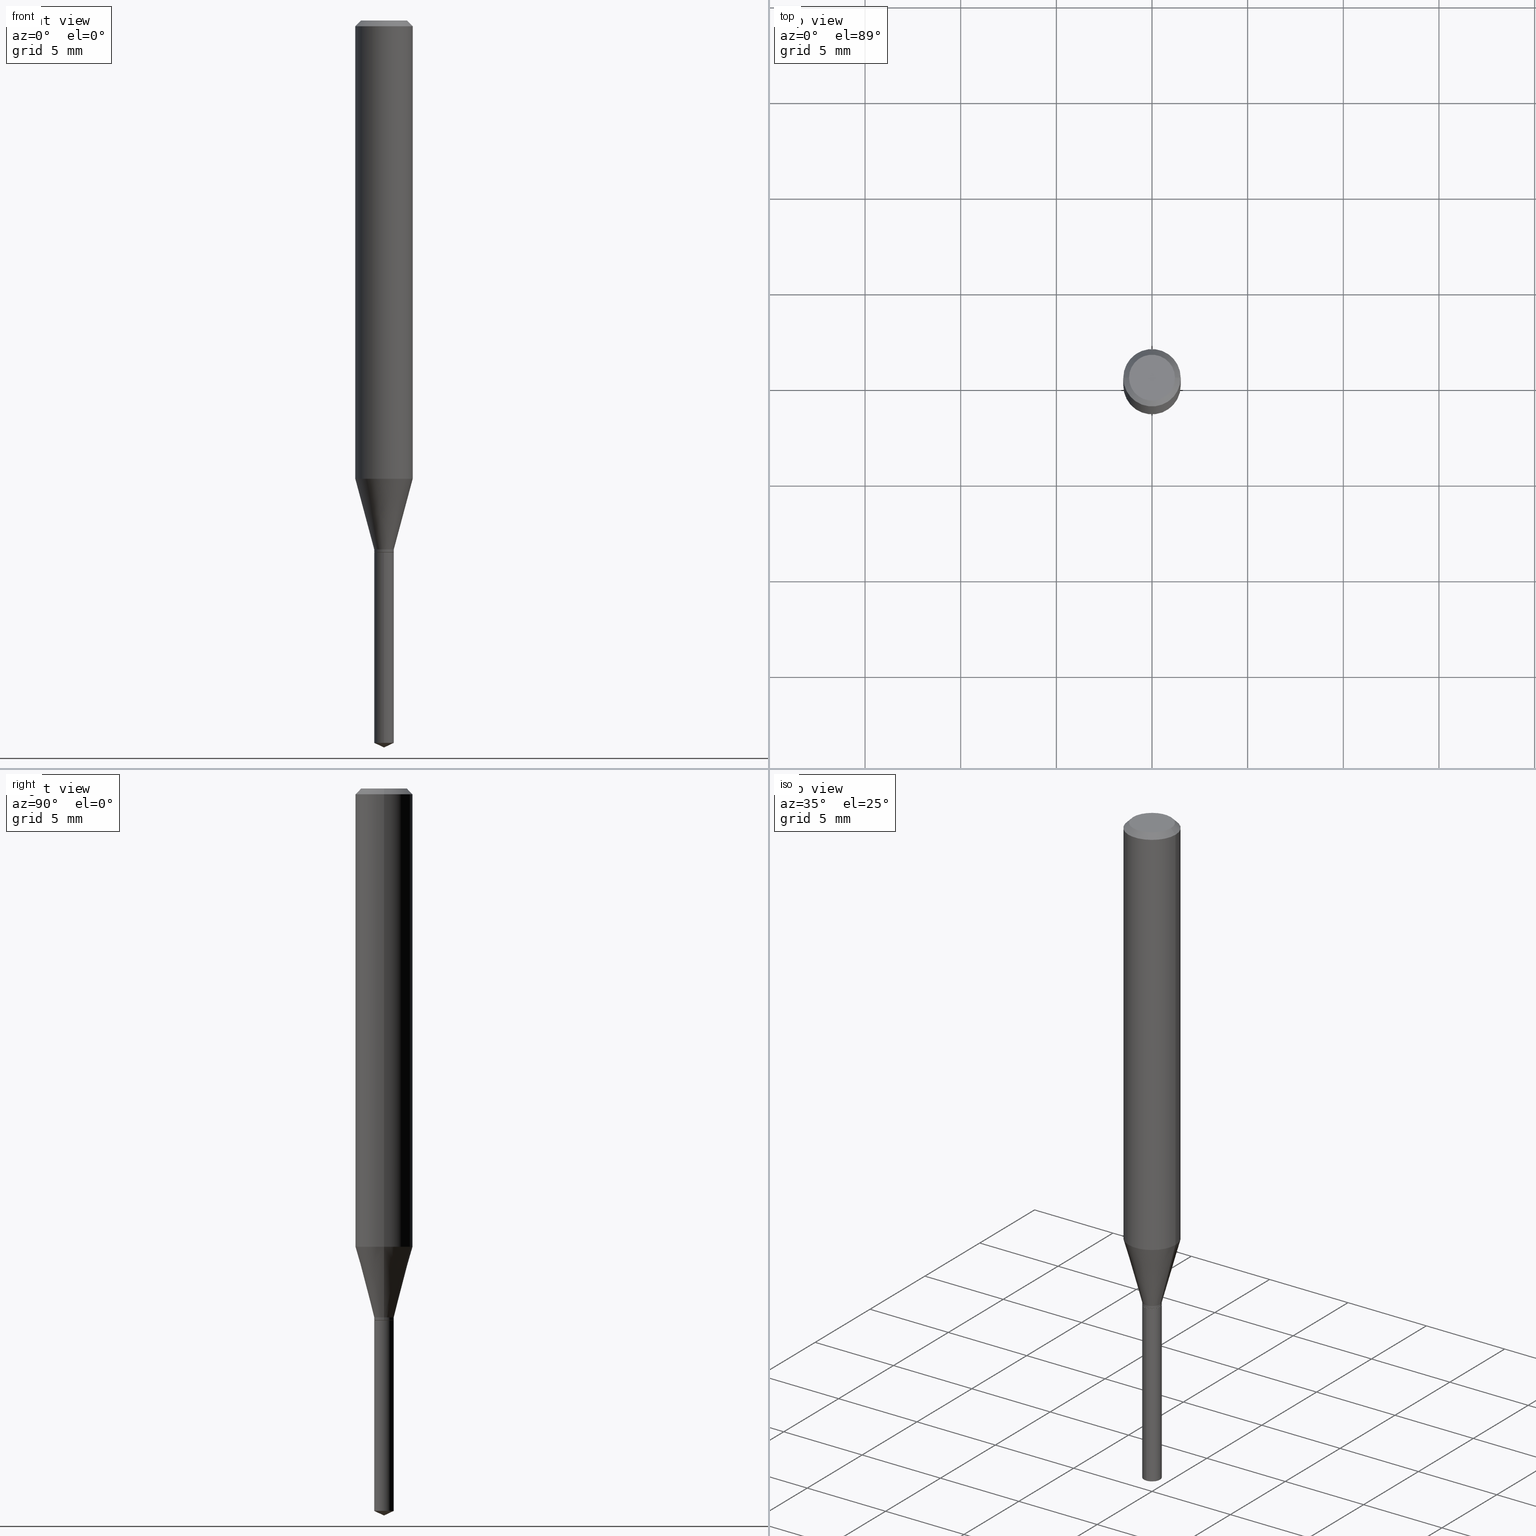
[diagram: canonical four-view strip — front | top / right | iso, engineering-drawing reading convention]
A machine part, canonical four-view strip (front | top / right | iso — engineering-drawing reading convention). The complete STEP part file that produces these views, byte-faithful:
ISO-10303-21;
HEADER;
FILE_DESCRIPTION (( 'STEP AP203' ),
    '1' );
FILE_NAME ('07483.STEP',
    '2024-04-23T21:57:15',
    ( '' ),
    ( '' ),
    'SwSTEP 2.0',
    'SolidWorks 2023',
    '' );
FILE_SCHEMA (( 'CONFIG_CONTROL_DESIGN' ));
ENDSEC;

DATA;
#1 = EDGE_LOOP ( 'NONE', ( #255, #157, #103, #98 ) ) ;
#2 = DIRECTION ( 'NONE',  ( 1.000000000000000000, -6.982962677686266711E-15, 4.876176775795935793E-29 ) ) ;
#3 = VERTEX_POINT ( 'NONE', #141 ) ;
#4 = CARTESIAN_POINT ( 'NONE',  ( 1.428190898878068587E-16, 0.02009999999999617995, -1.094500000000000028 ) ) ;
#5 = ORIENTED_EDGE ( 'NONE', *, *, #455, .F. ) ;
#6 = AXIS2_PLACEMENT_3D ( 'NONE', #294, #257, #347 ) ;
#7 = CARTESIAN_POINT ( 'NONE',  ( 2.661892795532520979E-29, -3.800477437330763942E-15, -1.088499999999999801 ) ) ;
#8 = CARTESIAN_POINT ( 'NONE',  ( 0.000000000000000000, 0.000000000000000000, 0.000000000000000000 ) ) ;
#9 = CARTESIAN_POINT ( 'NONE',  ( -0.01960000000000000284, -3.679510721980732285E-15, -1.094500000000000028 ) ) ;
#10 = VERTEX_POINT ( 'NONE', #59 ) ;
#11 = CIRCLE ( 'NONE', #280, 0.04724000000000000421 ) ;
#12 = CARTESIAN_POINT ( 'NONE',  ( 0.02009999999999999981, -1.403575498214939652E-16, 9.801115319349830341E-31 ) ) ;
#13 = ORIENTED_EDGE ( 'NONE', *, *, #139, .T. ) ;
#14 = CC_DESIGN_PERSON_AND_ORGANIZATION_ASSIGNMENT ( #25, #298, ( #202 ) ) ;
#15 = ORIENTED_EDGE ( 'NONE', *, *, #381, .F. ) ;
#16 = DIRECTION ( 'NONE',  ( -0.2588190451025212391, 5.211531920934549464E-15, 0.9659258262890679791 ) ) ;
#17 = LINE ( 'NONE', #398, #170 ) ;
#18 = CALENDAR_DATE ( 2024, 23, 4 ) ;
#19 = ORIENTED_EDGE ( 'NONE', *, *, #52, .T. ) ;
#20 = ADVANCED_FACE ( 'NONE', ( #36 ), #161, .T. ) ;
#21 = FACE_OUTER_BOUND ( 'NONE', #483, .T. ) ;
#22 = PERSON_AND_ORGANIZATION ( #303, #177 ) ;
#23 = EDGE_LOOP ( 'NONE', ( #313, #353 ) ) ;
#24 = PERSON_AND_ORGANIZATION ( #303, #177 ) ;
#25 = PERSON_AND_ORGANIZATION ( #303, #177 ) ;
#26 = ORIENTED_EDGE ( 'NONE', *, *, #37, .F. ) ;
#27 = CARTESIAN_POINT ( 'NONE',  ( 2.306411186736869099E-29, -3.292943912358867169E-15, -0.9431366210451919141 ) ) ;
#28 = CIRCLE ( 'NONE', #256, 0.05905000000000011628 ) ;
#29 = DATE_AND_TIME ( #18, #184 ) ;
#30 = EDGE_CURVE ( 'NONE', #85, #396, #361, .T. ) ;
#31 = CARTESIAN_POINT ( 'NONE',  ( 2.661892795532520979E-29, -3.800477437330763942E-15, -1.088499999999999801 ) ) ;
#32 = FACE_OUTER_BOUND ( 'NONE', #422, .T. ) ;
#33 = DATE_AND_TIME ( #363, #64 ) ;
#34 = ADVANCED_FACE ( 'NONE', ( #267 ), #467, .T. ) ;
#35 = CARTESIAN_POINT ( 'NONE',  ( 2.676565608369631794E-29, -3.821426325363822773E-15, -1.094499999999999806 ) ) ;
#36 = FACE_OUTER_BOUND ( 'NONE', #488, .T. ) ;
#37 = EDGE_CURVE ( 'NONE', #137, #296, #310, .T. ) ;
#38 = LINE ( 'NONE', #154, #245 ) ;
#39 = PLANE ( 'NONE',  #239 ) ;
#40 = AXIS2_PLACEMENT_3D ( 'NONE', #402, #122, #485 ) ;
#41 = ORIENTED_EDGE ( 'NONE', *, *, #284, .T. ) ;
#42 = CC_DESIGN_DATE_AND_TIME_ASSIGNMENT ( #29, #357, ( #120 ) ) ;
#43 = DIRECTION ( 'NONE',  ( -2.445468806185136597E-29, 3.491481338843145583E-15, 1.000000000000000000 ) ) ;
#44 = DIRECTION ( 'NONE',  ( -2.445468806185136597E-29, 3.491481338843145583E-15, 1.000000000000000000 ) ) ;
#45 = EDGE_CURVE ( 'NONE', #111, #137, #38, .T. ) ;
#46 = LINE ( 'NONE', #461, #149 ) ;
#47 = VECTOR ( 'NONE', #377, 39.37007874015748143 ) ;
#48 = VERTEX_POINT ( 'NONE', #261 ) ;
#49 = APPROVAL_PERSON_ORGANIZATION ( #394, #429, #473 ) ;
#50 = DIRECTION ( 'NONE',  ( -6.982962677686265922E-15, -1.000000000000000000, 6.795641775284236638E-15 ) ) ;
#51 = CARTESIAN_POINT ( 'NONE',  ( -0.02009999999999999981, -3.667259921124801632E-15, -1.093999999999999861 ) ) ;
#52 = EDGE_CURVE ( 'NONE', #385, #380, #252, .T. ) ;
#53 = CYLINDRICAL_SURFACE ( 'NONE', #83, 0.02009999999999999981 ) ;
#54 = EDGE_LOOP ( 'NONE', ( #434, #41, #148, #127 ) ) ;
#55 = AXIS2_PLACEMENT_3D ( 'NONE', #114, #197, #118 ) ;
#56 = PRODUCT_DEFINITION_FORMATION_WITH_SPECIFIED_SOURCE ( 'ANY', '', #126, .NOT_KNOWN. ) ;
#57 = CARTESIAN_POINT ( 'NONE',  ( 2.676565608369632355E-29, -3.821426325363822773E-15, -1.094500000000000028 ) ) ;
#58 = ADVANCED_FACE ( 'NONE', ( #232 ), #401, .T. ) ;
#59 = CARTESIAN_POINT ( 'NONE',  ( 0.02009999999999999981, -3.940834987152257562E-15, -1.088499999999999801 ) ) ;
#60 =( LENGTH_UNIT ( ) NAMED_UNIT ( * ) SI_UNIT ( $, .METRE. ) );
#61 = CALENDAR_DATE ( 2024, 23, 4 ) ;
#62 = ORIENTED_EDGE ( 'NONE', *, *, #440, .F. ) ;
#63 = AXIS2_PLACEMENT_3D ( 'NONE', #407, #44, #271 ) ;
#64 = LOCAL_TIME ( 17, 57, 15.00000000000000000, #235 ) ;
#65 = AXIS2_PLACEMENT_3D ( 'NONE', #8, #412, #251 ) ;
#66 = COORDINATED_UNIVERSAL_TIME_OFFSET ( 5, 0, .BEHIND. ) ;
#67 = ORIENTED_EDGE ( 'NONE', *, *, #136, .T. ) ;
#68 = DIRECTION ( 'NONE',  ( 1.000000000000000000, -6.982962677686267499E-15, 0.000000000000000000 ) ) ;
#69 = VERTEX_POINT ( 'NONE', #449 ) ;
#70 = CARTESIAN_POINT ( 'NONE',  ( -1.403575498214575790E-16, -0.02010000000000519357, -1.486727216071084490 ) ) ;
#71 = EDGE_CURVE ( 'NONE', #281, #111, #286, .T. ) ;
#72 = DIRECTION ( 'NONE',  ( -6.982962677686265922E-15, -1.000000000000000000, 6.795641775284236638E-15 ) ) ;
#73 = DIRECTION ( 'NONE',  ( 6.439704144417034297E-15, 0.9063077870366528233, 0.4226182617406930020 ) ) ;
#74 = AXIS2_PLACEMENT_3D ( 'NONE', #31, #199, #489 ) ;
#75 = APPROVAL_STATUS ( 'not_yet_approved' ) ;
#76 = LOCAL_TIME ( 17, 57, 15.00000000000000000, #66 ) ;
#77 = DIRECTION ( 'NONE',  ( 1.000000000000000000, -6.982962677686267499E-15, 0.000000000000000000 ) ) ;
#78 = ADVANCED_FACE ( 'NONE', ( #359 ), #301, .T. ) ;
#79 = DIRECTION ( 'NONE',  ( -2.445468806185136597E-29, 3.491481338843145583E-15, 1.000000000000000000 ) ) ;
#80 = ORIENTED_EDGE ( 'NONE', *, *, #464, .F. ) ;
#81 = DIRECTION ( 'NONE',  ( -1.000000000000000000, 6.982962677686267499E-15, 0.000000000000000000 ) ) ;
#82 = DIRECTION ( 'NONE',  ( 6.982962677686265922E-15, 1.000000000000000000, -3.491479321953280158E-15 ) ) ;
#83 = AXIS2_PLACEMENT_3D ( 'NONE', #453, #174, #50 ) ;
#84 = AXIS2_PLACEMENT_3D ( 'NONE', #291, #99, #109 ) ;
#85 = VERTEX_POINT ( 'NONE', #70 ) ;
#86 = FACE_OUTER_BOUND ( 'NONE', #153, .T. ) ;
#87 = CARTESIAN_POINT ( 'NONE',  ( 4.132873053354867254E-48, -5.900647395337818946E-34, -1.690012582823346072E-19 ) ) ;
#88 = EDGE_CURVE ( 'NONE', #48, #437, #28, .T. ) ;
#89 = ORIENTED_EDGE ( 'NONE', *, *, #209, .F. ) ;
#90 = DIRECTION ( 'NONE',  ( 1.000000000000000000, -6.982962677686266711E-15, 0.000000000000000000 ) ) ;
#91 = CARTESIAN_POINT ( 'NONE',  ( -0.05905000000000006771, 4.195754854663396409E-16, -2.904631170795525045E-30 ) ) ;
#92 = ADVANCED_BREP_SHAPE_REPRESENTATION ( '07483', ( #335, #388, #6 ), #224 ) ;
#93 = CYLINDRICAL_SURFACE ( 'NONE', #132, 0.02009999999999999981 ) ;
#94 = DESIGN_CONTEXT ( 'detailed design', #382, 'design' ) ;
#95 = ORIENTED_EDGE ( 'NONE', *, *, #209, .T. ) ;
#96 = ADVANCED_FACE ( 'NONE', ( #86 ), #393, .T. ) ;
#97 = FACE_OUTER_BOUND ( 'NONE', #219, .T. ) ;
#98 = ORIENTED_EDGE ( 'NONE', *, *, #88, .F. ) ;
#99 = DIRECTION ( 'NONE',  ( -2.445468806185136597E-29, 3.491481338843145583E-15, 1.000000000000000000 ) ) ;
#100 = DIRECTION ( 'NONE',  ( 0.2588190451025212391, 1.565188264969622362E-15, 0.9659258262890679791 ) ) ;
#101 = CC_DESIGN_PERSON_AND_ORGANIZATION_ASSIGNMENT ( #24, #190, ( #126 ) ) ;
#102 = PERSON_AND_ORGANIZATION ( #303, #177 ) ;
#103 = ORIENTED_EDGE ( 'NONE', *, *, #440, .T. ) ;
#104 = DIRECTION ( 'NONE',  ( -2.445468806185136597E-29, 3.491481338843145583E-15, 1.000000000000000000 ) ) ;
#105 = DATE_TIME_ROLE ( 'classification_date' ) ;
#106 = ORIENTED_EDGE ( 'NONE', *, *, #30, .T. ) ;
#107 = AXIS2_PLACEMENT_3D ( 'NONE', #237, #444, #368 ) ;
#108 = LOCAL_TIME ( 17, 57, 15.00000000000000000, #351 ) ;
#109 = DIRECTION ( 'NONE',  ( 1.000000000000000000, -6.982962677686266711E-15, 4.876185090822587894E-29 ) ) ;
#110 = APPROVAL_STATUS ( 'not_yet_approved' ) ;
#111 = VERTEX_POINT ( 'NONE', #374 ) ;
#112 = CARTESIAN_POINT ( 'NONE',  ( 3.658668015054778287E-29, -5.223602213574301462E-15, -1.496099999999999985 ) ) ;
#113 = CALENDAR_DATE ( 2024, 23, 4 ) ;
#114 = CARTESIAN_POINT ( 'NONE',  ( 0.000000000000000000, 0.000000000000000000, 0.000000000000000000 ) ) ;
#115 = VECTOR ( 'NONE', #334, 39.37007874015748143 ) ;
#116 = AXIS2_PLACEMENT_3D ( 'NONE', #87, #456, #336 ) ;
#117 = ORIENTED_EDGE ( 'NONE', *, *, #136, .F. ) ;
#118 = DIRECTION ( 'NONE',  ( 1.000000000000000000, -6.982962677686266711E-15, 4.876176775795936353E-29 ) ) ;
#119 = CARTESIAN_POINT ( 'NONE',  ( 0.05905000000000000526, -4.535783407291119586E-16, -0.01181000000000007738 ) ) ;
#120 = PRODUCT_DEFINITION ( 'UNKNOWN', '', #56, #94 ) ;
#121 = DIRECTION ( 'NONE',  ( 1.000000000000000000, -6.982962677686267499E-15, 0.000000000000000000 ) ) ;
#122 = DIRECTION ( 'NONE',  ( -2.445468806185136597E-29, 3.491481338843145583E-15, 1.000000000000000000 ) ) ;
#123 = AXIS2_PLACEMENT_3D ( 'NONE', #179, #210, #90 ) ;
#124 = EDGE_CURVE ( 'NONE', #354, #69, #445, .T. ) ;
#125 = CARTESIAN_POINT ( 'NONE',  ( 0.04724000000000000421, -3.852183633974369838E-16, -3.380025165621689721E-19 ) ) ;
#126 = PRODUCT ( '07483', '07483', '', ( #470 ) ) ;
#127 = ORIENTED_EDGE ( 'NONE', *, *, #317, .F. ) ;
#128 = EDGE_CURVE ( 'NONE', #296, #137, #292, .T. ) ;
#129 = CARTESIAN_POINT ( 'NONE',  ( 2.676565608369631794E-29, -3.821426325363822773E-15, -1.094499999999999806 ) ) ;
#130 = DIRECTION ( 'NONE',  ( -6.982962677686265922E-15, -1.000000000000000000, 0.000000000000000000 ) ) ;
#131 = CARTESIAN_POINT ( 'NONE',  ( -1.403575498214671933E-16, -0.02010000000000381967, -1.094499999999999806 ) ) ;
#132 = AXIS2_PLACEMENT_3D ( 'NONE', #129, #135, #249 ) ;
#133 = CONICAL_SURFACE ( 'NONE', #372, 0.01960000000000000284, 0.7853981633972733079 ) ;
#134 = ORIENTED_EDGE ( 'NONE', *, *, #306, .F. ) ;
#135 = DIRECTION ( 'NONE',  ( -2.445470214571802116E-29, 3.491479321953280158E-15, 1.000000000000000000 ) ) ;
#136 = EDGE_CURVE ( 'NONE', #221, #69, #304, .T. ) ;
#137 = VERTEX_POINT ( 'NONE', #155 ) ;
#138 = DIRECTION ( 'NONE',  ( -2.445470214571802116E-29, 3.491479321953280158E-15, 1.000000000000000000 ) ) ;
#139 = EDGE_CURVE ( 'NONE', #365, #221, #326, .T. ) ;
#140 = DIRECTION ( 'NONE',  ( -2.445468806185136597E-29, 3.491481338843145583E-15, 1.000000000000000000 ) ) ;
#141 = CARTESIAN_POINT ( 'NONE',  ( -0.02009999999999999981, -3.667259921124801632E-15, -1.088499999999999801 ) ) ;
#142 = AXIS2_PLACEMENT_3D ( 'NONE', #373, #160, #375 ) ;
#143 = DIRECTION ( 'NONE',  ( -2.445470214571802116E-29, 3.491479321953280158E-15, 1.000000000000000000 ) ) ;
#144 = FACE_OUTER_BOUND ( 'NONE', #348, .T. ) ;
#145 = PERSON_AND_ORGANIZATION_ROLE ( 'design_supplier' ) ;
#146 = ORIENTED_EDGE ( 'NONE', *, *, #128, .F. ) ;
#147 = CARTESIAN_POINT ( 'NONE',  ( 1.428190898878164976E-16, 0.02009999999999480952, -1.486727216071084490 ) ) ;
#148 = ORIENTED_EDGE ( 'NONE', *, *, #173, .F. ) ;
#149 = VECTOR ( 'NONE', #420, 39.37007874015748143 ) ;
#150 = CARTESIAN_POINT ( 'NONE',  ( 8.265746106709734507E-48, -1.180129479067563789E-33, -3.380025165646692144E-19 ) ) ;
#151 = AXIS2_PLACEMENT_3D ( 'NONE', #475, #391, #259 ) ;
#152 = PERSON_AND_ORGANIZATION_ROLE ( 'creator' ) ;
#153 = EDGE_LOOP ( 'NONE', ( #134, #216, #330, #146 ) ) ;
#154 = CARTESIAN_POINT ( 'NONE',  ( 0.01960000000000000284, -3.958292393846474175E-15, -1.094500000000000028 ) ) ;
#155 = CARTESIAN_POINT ( 'NONE',  ( 0.02009999999999999981, -3.960038134515894890E-15, -1.093999999999999861 ) ) ;
#156 = DIRECTION ( 'NONE',  ( -2.445470214571802116E-29, 3.491479321953280158E-15, 1.000000000000000000 ) ) ;
#157 = ORIENTED_EDGE ( 'NONE', *, *, #262, .T. ) ;
#158 = DIRECTION ( 'NONE',  ( 2.445468806185136597E-29, -3.491481338843145583E-15, -1.000000000000000000 ) ) ;
#159 = CC_DESIGN_PERSON_AND_ORGANIZATION_ASSIGNMENT ( #400, #399, ( #56 ) ) ;
#160 = DIRECTION ( 'NONE',  ( -2.445468806185136597E-29, 3.491481338843145583E-15, 1.000000000000000000 ) ) ;
#161 = CONICAL_SURFACE ( 'NONE', #214, 84.42940631927474726, 1.134464013796317783 ) ;
#162 = LOCAL_TIME ( 17, 57, 15.00000000000000000, #442 ) ;
#163 = CARTESIAN_POINT ( 'NONE',  ( 3.635745582615888568E-29, -5.190879539783315426E-15, -1.486727216071084490 ) ) ;
#164 = ORIENTED_EDGE ( 'NONE', *, *, #416, .F. ) ;
#165 = FACE_OUTER_BOUND ( 'NONE', #403, .T. ) ;
#166 = ADVANCED_FACE ( 'NONE', ( #165 ), #366, .F. ) ;
#167 = ORIENTED_EDGE ( 'NONE', *, *, #250, .F. ) ;
#168 = CARTESIAN_POINT ( 'NONE',  ( 3.658664905062460986E-29, -5.223606628546217219E-15, -1.496099999999999985 ) ) ;
#169 = VECTOR ( 'NONE', #490, 39.37007874015748143 ) ;
#170 = VECTOR ( 'NONE', #16, 39.37007874015748854 ) ;
#171 = CC_DESIGN_PERSON_AND_ORGANIZATION_ASSIGNMENT ( #22, #145, ( #56 ) ) ;
#172 = LINE ( 'NONE', #168, #436 ) ;
#173 = EDGE_CURVE ( 'NONE', #10, #3, #352, .T. ) ;
#174 = DIRECTION ( 'NONE',  ( -2.445470214571802116E-29, 3.491479321953280158E-15, 1.000000000000000000 ) ) ;
#175 = FACE_OUTER_BOUND ( 'NONE', #54, .T. ) ;
#176 = CIRCLE ( 'NONE', #206, 0.01960000000000000284 ) ;
#177 = ORGANIZATION ( 'UNSPECIFIED', 'UNSPECIFIED', '' ) ;
#178 = ORIENTED_EDGE ( 'NONE', *, *, #124, .F. ) ;
#179 = CARTESIAN_POINT ( 'NONE',  ( 2.306411186736869099E-29, -3.292943912358867169E-15, -0.9431366210451919141 ) ) ;
#180 = ORIENTED_EDGE ( 'NONE', *, *, #218, .F. ) ;
#181 = ORIENTED_EDGE ( 'NONE', *, *, #218, .T. ) ;
#182 = CARTESIAN_POINT ( 'NONE',  ( 2.661892795532520979E-29, -3.800477437330763942E-15, -1.088499999999999801 ) ) ;
#183 = VERTEX_POINT ( 'NONE', #302 ) ;
#184 = LOCAL_TIME ( 17, 57, 15.00000000000000000, #478 ) ;
#185 = CALENDAR_DATE ( 2024, 23, 4 ) ;
#186 = ORIENTED_EDGE ( 'NONE', *, *, #381, .T. ) ;
#187 = CARTESIAN_POINT ( 'NONE',  ( 3.635745582615888568E-29, -5.190879539783315426E-15, -1.486727216071084490 ) ) ;
#188 = APPROVAL_ROLE ( '' ) ;
#189 = ORIENTED_EDGE ( 'NONE', *, *, #52, .F. ) ;
#190 = PERSON_AND_ORGANIZATION_ROLE ( 'design_owner' ) ;
#191 = DATE_AND_TIME ( #113, #76 ) ;
#192 = ORIENTED_EDGE ( 'NONE', *, *, #250, .T. ) ;
#193 = AXIS2_PLACEMENT_3D ( 'NONE', #269, #158, #81 ) ;
#194 = DIRECTION ( 'NONE',  ( -2.445468806185136597E-29, 3.491481338843145583E-15, 1.000000000000000000 ) ) ;
#195 = CONICAL_SURFACE ( 'NONE', #151, 0.05905000000000000526, 0.7853981633974452814 ) ;
#196 = ORIENTED_EDGE ( 'NONE', *, *, #262, .F. ) ;
#197 = DIRECTION ( 'NONE',  ( -2.445468806185136597E-29, 3.491481338843145583E-15, 1.000000000000000000 ) ) ;
#198 = DIRECTION ( 'NONE',  ( 2.445470214571801836E-29, -3.491479321953280158E-15, -1.000000000000000000 ) ) ;
#199 = DIRECTION ( 'NONE',  ( -2.445468806185136597E-29, 3.491481338843145583E-15, 1.000000000000000000 ) ) ;
#200 = VECTOR ( 'NONE', #282, 39.37007874015748143 ) ;
#201 = CARTESIAN_POINT ( 'NONE',  ( -2.649738391569610610E-29, -1.144899680767386243E-14, -1.094500000000000028 ) ) ;
#202 = SECURITY_CLASSIFICATION ( '', '', #432 ) ;
#203 = CARTESIAN_POINT ( 'NONE',  ( -1.403575498214671933E-16, -0.02010000000000381967, -1.094499999999999806 ) ) ;
#204 = DIRECTION ( 'NONE',  ( -2.445468806185136597E-29, 3.491481338843145583E-15, 1.000000000000000000 ) ) ;
#205 = FACE_OUTER_BOUND ( 'NONE', #439, .T. ) ;
#206 = AXIS2_PLACEMENT_3D ( 'NONE', #234, #43, #327 ) ;
#207 = VECTOR ( 'NONE', #248, 39.37007874015748143 ) ;
#208 = EDGE_LOOP ( 'NONE', ( #411, #427 ) ) ;
#209 = EDGE_CURVE ( 'NONE', #183, #396, #441, .T. ) ;
#210 = DIRECTION ( 'NONE',  ( -2.445468806185136597E-29, 3.491481338843145583E-15, 1.000000000000000000 ) ) ;
#211 = EDGE_CURVE ( 'NONE', #111, #281, #176, .T. ) ;
#212 = CYLINDRICAL_SURFACE ( 'NONE', #65, 0.05905000000000006771 ) ;
#213 = FACE_OUTER_BOUND ( 'NONE', #339, .T. ) ;
#214 = AXIS2_PLACEMENT_3D ( 'NONE', #482, #156, #486 ) ;
#215 = CONICAL_SURFACE ( 'NONE', #426, 0.02009999999999999981, 0.2617993877991499629 ) ;
#216 = ORIENTED_EDGE ( 'NONE', *, *, #71, .T. ) ;
#217 = DIRECTION ( 'NONE',  ( 1.000000000000000000, -6.982962677686267499E-15, 0.000000000000000000 ) ) ;
#218 = EDGE_CURVE ( 'NONE', #85, #380, #362, .T. ) ;
#219 = EDGE_LOOP ( 'NONE', ( #15, #378, #192, #80 ) ) ;
#220 = CC_DESIGN_DATE_AND_TIME_ASSIGNMENT ( #191, #105, ( #202 ) ) ;
#221 = VERTEX_POINT ( 'NONE', #119 ) ;
#222 = PERSON_AND_ORGANIZATION ( #303, #177 ) ;
#223 = EDGE_LOOP ( 'NONE', ( #328, #474, #181, #189 ) ) ;
#224 =( GEOMETRIC_REPRESENTATION_CONTEXT ( 3 ) GLOBAL_UNCERTAINTY_ASSIGNED_CONTEXT ( ( #421 ) ) GLOBAL_UNIT_ASSIGNED_CONTEXT ( ( #314, #392, #389 ) ) REPRESENTATION_CONTEXT ( 'NONE', 'WORKASPACE' ) );
#225 = APPROVAL_DATE_TIME ( #260, #367 ) ;
#226 = ORIENTED_EDGE ( 'NONE', *, *, #406, .T. ) ;
#227 = APPLICATION_PROTOCOL_DEFINITION ( 'international standard', 'config_control_design', 1994, #382 ) ;
#228 = ORIENTED_EDGE ( 'NONE', *, *, #45, .F. ) ;
#229 = ADVANCED_FACE ( 'NONE', ( #32 ), #481, .T. ) ;
#230 = APPROVAL_STATUS ( 'not_yet_approved' ) ;
#231 = VECTOR ( 'NONE', #276, 39.37007874015748143 ) ;
#232 = FACE_OUTER_BOUND ( 'NONE', #1, .T. ) ;
#233 = CIRCLE ( 'NONE', #405, 0.05905000000000000526 ) ;
#234 = CARTESIAN_POINT ( 'NONE',  ( 2.676565608369632355E-29, -3.821426325363822773E-15, -1.094500000000000028 ) ) ;
#235 = COORDINATED_UNIVERSAL_TIME_OFFSET ( 5, 0, .BEHIND. ) ;
#236 = DIRECTION ( 'NONE',  ( 0.7071067811865453523, -7.319954787623248157E-15, -0.7071067811865496822 ) ) ;
#237 = CARTESIAN_POINT ( 'NONE',  ( 2.675342873966538993E-29, -3.819680584694400481E-15, -1.093999999999999861 ) ) ;
#238 = DIRECTION ( 'NONE',  ( -2.445470214571802116E-29, 3.491479321953280158E-15, 1.000000000000000000 ) ) ;
#239 = AXIS2_PLACEMENT_3D ( 'NONE', #201, #338, #277 ) ;
#240 = CIRCLE ( 'NONE', #293, 0.02009999999999999981 ) ;
#241 = DIRECTION ( 'NONE',  ( 1.000000000000000000, -6.982962677686266711E-15, 0.000000000000000000 ) ) ;
#242 = CARTESIAN_POINT ( 'NONE',  ( -9.261968845786000133E-28, 1.322362114038720264E-13, 37.87397874015748300 ) ) ;
#243 = ADVANCED_FACE ( 'NONE', ( #369 ), #39, .F. ) ;
#244 = CARTESIAN_POINT ( 'NONE',  ( -0.04724000000000000421, 3.504923541997677355E-16, -3.380025165670481712E-19 ) ) ;
#245 = VECTOR ( 'NONE', #484, 39.37007874015748143 ) ;
#246 = ADVANCED_FACE ( 'NONE', ( #205 ), #53, .T. ) ;
#247 = ORIENTED_EDGE ( 'NONE', *, *, #397, .F. ) ;
#248 = DIRECTION ( 'NONE',  ( -2.445468806185136877E-29, 3.491481338843145188E-15, 1.000000000000000000 ) ) ;
#249 = DIRECTION ( 'NONE',  ( -6.982962677686265922E-15, -1.000000000000000000, 6.795641775284236638E-15 ) ) ;
#250 = EDGE_CURVE ( 'NONE', #437, #221, #386, .T. ) ;
#251 = DIRECTION ( 'NONE',  ( 1.000000000000000000, -6.982962677686266711E-15, 4.876176775795936353E-29 ) ) ;
#252 = CIRCLE ( 'NONE', #459, 0.02009999999999999981 ) ;
#253 = ORIENTED_EDGE ( 'NONE', *, *, #124, .T. ) ;
#254 = FACE_OUTER_BOUND ( 'NONE', #346, .T. ) ;
#255 = ORIENTED_EDGE ( 'NONE', *, *, #406, .F. ) ;
#256 = AXIS2_PLACEMENT_3D ( 'NONE', #27, #194, #241 ) ;
#257 = DIRECTION ( 'NONE',  ( 0.000000000000000000, 0.000000000000000000, 1.000000000000000000 ) ) ;
#258 = ORIENTED_EDGE ( 'NONE', *, *, #284, .F. ) ;
#259 = DIRECTION ( 'NONE',  ( -1.000000000000000000, 6.982962677686267499E-15, 0.000000000000000000 ) ) ;
#260 = DATE_AND_TIME ( #61, #162 ) ;
#261 = CARTESIAN_POINT ( 'NONE',  ( -0.05905000000000011628, -2.873368426892526887E-15, -0.9431366210451919141 ) ) ;
#262 = EDGE_CURVE ( 'NONE', #3, #10, #279, .T. ) ;
#263 = CARTESIAN_POINT ( 'NONE',  ( -0.05905000000000000526, 3.711095515056362547E-16, -0.01181000000000007738 ) ) ;
#264 = VECTOR ( 'NONE', #447, 39.37007874015748143 ) ;
#265 = CARTESIAN_POINT ( 'NONE',  ( 0.05905000000000000526, -4.463468013801467941E-16, -0.01181000000000007738 ) ) ;
#266 = ORIENTED_EDGE ( 'NONE', *, *, #211, .T. ) ;
#267 = FACE_OUTER_BOUND ( 'NONE', #390, .T. ) ;
#268 = ORIENTED_EDGE ( 'NONE', *, *, #455, .T. ) ;
#269 = CARTESIAN_POINT ( 'NONE',  ( 2.888098660104665518E-31, -4.123439461173782112E-17, -0.01181000000000007738 ) ) ;
#270 = DIRECTION ( 'NONE',  ( -2.445468806185136597E-29, 3.491481338843145583E-15, 1.000000000000000000 ) ) ;
#271 = DIRECTION ( 'NONE',  ( 1.000000000000000000, -6.982962677686267499E-15, 0.000000000000000000 ) ) ;
#272 = CIRCLE ( 'NONE', #123, 0.05905000000000011628 ) ;
#273 = CC_DESIGN_APPROVAL ( #367, ( #120 ) ) ;
#274 = CLOSED_SHELL ( 'NONE', ( #246, #20, #275, #297, #166 ) ) ;
#275 = ADVANCED_FACE ( 'NONE', ( #213 ), #477, .T. ) ;
#276 = DIRECTION ( 'NONE',  ( -0.7071067811864237829, 7.493145998869907665E-15, 0.7071067811866712516 ) ) ;
#277 = DIRECTION ( 'NONE',  ( 1.000000000000000000, -6.982962677686265922E-15, 4.876176775795935793E-29 ) ) ;
#278 = LINE ( 'NONE', #91, #207 ) ;
#279 = CIRCLE ( 'NONE', #342, 0.02009999999999999981 ) ;
#280 = AXIS2_PLACEMENT_3D ( 'NONE', #150, #438, #355 ) ;
#281 = VERTEX_POINT ( 'NONE', #9 ) ;
#282 = DIRECTION ( 'NONE',  ( -2.445468806185136877E-29, 3.491481338843145188E-15, 1.000000000000000000 ) ) ;
#283 = CARTESIAN_POINT ( 'NONE',  ( 0.05905000000000006771, -4.123439461173745257E-16, 2.879382386107503723E-30 ) ) ;
#284 = EDGE_CURVE ( 'NONE', #296, #3, #46, .T. ) ;
#285 = DIRECTION ( 'NONE',  ( -6.982962677686265922E-15, -1.000000000000000000, 0.000000000000000000 ) ) ;
#286 = CIRCLE ( 'NONE', #404, 0.01960000000000000284 ) ;
#287 = CC_DESIGN_APPROVAL ( #429, ( #202 ) ) ;
#288 = ORIENTED_EDGE ( 'NONE', *, *, #423, .F. ) ;
#289 = DIRECTION ( 'NONE',  ( -2.445468806185136597E-29, 3.491481338843145583E-15, 1.000000000000000000 ) ) ;
#290 = DIMENSIONAL_EXPONENTS ( 1.000000000000000000, 0.000000000000000000, 0.000000000000000000, 0.000000000000000000, 0.000000000000000000, 0.000000000000000000, 0.000000000000000000 ) ;
#291 = CARTESIAN_POINT ( 'NONE',  ( 8.265746106709734507E-48, -1.180129479067563789E-33, -3.380025165646692144E-19 ) ) ;
#292 = CIRCLE ( 'NONE', #40, 0.02009999999999999981 ) ;
#293 = AXIS2_PLACEMENT_3D ( 'NONE', #187, #143, #285 ) ;
#294 = CARTESIAN_POINT ( 'NONE',  ( 0.000000000000000000, 0.000000000000000000, 0.000000000000000000 ) ) ;
#295 = DATE_AND_TIME ( #185, #108 ) ;
#296 = VERTEX_POINT ( 'NONE', #51 ) ;
#297 = ADVANCED_FACE ( 'NONE', ( #340 ), #93, .T. ) ;
#298 = PERSON_AND_ORGANIZATION_ROLE ( 'classification_officer' ) ;
#299 = CARTESIAN_POINT ( 'NONE',  ( 2.676565608369631794E-29, -3.821426325363822773E-15, -1.094499999999999806 ) ) ;
#300 = CARTESIAN_POINT ( 'NONE',  ( 2.888098660104665518E-31, -4.123439461173782112E-17, -0.01181000000000007738 ) ) ;
#301 = CYLINDRICAL_SURFACE ( 'NONE', #55, 0.05905000000000006771 ) ;
#302 = CARTESIAN_POINT ( 'NONE',  ( 3.658667988020872822E-29, -5.223602213574301462E-15, -1.496099999999999985 ) ) ;
#303 = PERSON ( 'UNSPECIFIED', 'UNSPECIFIED', 'UNSPECIFIED', ('UNSPECIFIED'), ('UNSPECIFIED'), ('UNSPECIFIED') ) ;
#304 = CIRCLE ( 'NONE', #370, 0.05905000000000000526 ) ;
#305 = DIRECTION ( 'NONE',  ( -6.328713451373378845E-15, -0.9063077870366499367, 0.4226182617406992748 ) ) ;
#306 = EDGE_CURVE ( 'NONE', #281, #296, #379, .T. ) ;
#307 = PLANE ( 'NONE',  #116 ) ;
#308 = DIRECTION ( 'NONE',  ( -6.982962677686267499E-15, -1.000000000000000000, 3.520397390770436909E-15 ) ) ;
#309 = DIRECTION ( 'NONE',  ( -2.445468806185136597E-29, 3.491481338843145583E-15, 1.000000000000000000 ) ) ;
#310 = CIRCLE ( 'NONE', #107, 0.02009999999999999981 ) ;
#311 = ORIENTED_EDGE ( 'NONE', *, *, #139, .F. ) ;
#312 = CYLINDRICAL_SURFACE ( 'NONE', #316, 0.02009999999999999981 ) ;
#313 = ORIENTED_EDGE ( 'NONE', *, *, #211, .F. ) ;
#314 =( CONVERSION_BASED_UNIT ( 'INCH', #349 ) LENGTH_UNIT ( ) NAMED_UNIT ( #290 ) );
#315 = APPROVAL_DATE_TIME ( #33, #429 ) ;
#316 = AXIS2_PLACEMENT_3D ( 'NONE', #463, #309, #418 ) ;
#317 = EDGE_CURVE ( 'NONE', #137, #10, #458, .T. ) ;
#318 = APPLICATION_PROTOCOL_DEFINITION ( 'international standard', 'config_control_design', 1994, #431 ) ;
#319 = DIRECTION ( 'NONE',  ( 1.000000000000000000, -6.982962677686270655E-15, 0.000000000000000000 ) ) ;
#320 = APPROVAL_ROLE ( '' ) ;
#321 = ORIENTED_EDGE ( 'NONE', *, *, #128, .T. ) ;
#322 = CARTESIAN_POINT ( 'NONE',  ( 0.02009999999999999981, -3.940834987152257562E-15, -1.088499999999999801 ) ) ;
#323 = EDGE_CURVE ( 'NONE', #437, #48, #272, .T. ) ;
#324 = APPROVAL_PERSON_ORGANIZATION ( #102, #367, #188 ) ;
#325 = DIRECTION ( 'NONE',  ( -2.445468806185136597E-29, 3.491481338843145583E-15, 1.000000000000000000 ) ) ;
#326 = LINE ( 'NONE', #265, #446 ) ;
#327 = DIRECTION ( 'NONE',  ( 1.000000000000000000, -6.982962677686267499E-15, 0.000000000000000000 ) ) ;
#328 = ORIENTED_EDGE ( 'NONE', *, *, #356, .F. ) ;
#329 = CC_DESIGN_SECURITY_CLASSIFICATION ( #202, ( #56 ) ) ;
#330 = ORIENTED_EDGE ( 'NONE', *, *, #45, .T. ) ;
#331 = CARTESIAN_POINT ( 'NONE',  ( 0.000000000000000000, 0.000000000000000000, 0.000000000000000000 ) ) ;
#332 = DIRECTION ( 'NONE',  ( 1.000000000000000000, -6.982962677686270655E-15, 0.000000000000000000 ) ) ;
#333 = AXIS2_PLACEMENT_3D ( 'NONE', #163, #448, #130 ) ;
#334 = DIRECTION ( 'NONE',  ( -2.445470214571802396E-29, 3.491479321953280158E-15, 1.000000000000000000 ) ) ;
#335 = MANIFOLD_SOLID_BREP ( 'Body-Move/Copy2[1]', #274 ) ;
#336 = DIRECTION ( 'NONE',  ( -1.000000000000000000, 6.982962677686265922E-15, -4.876176775795935793E-29 ) ) ;
#337 = ADVANCED_FACE ( 'NONE', ( #175 ), #312, .T. ) ;
#338 = DIRECTION ( 'NONE',  ( -2.438088387897960049E-29, 3.491481338843145188E-15, 1.000000000000000000 ) ) ;
#339 = EDGE_LOOP ( 'NONE', ( #89, #454, #247 ) ) ;
#340 = FACE_OUTER_BOUND ( 'NONE', #223, .T. ) ;
#341 = CC_DESIGN_PERSON_AND_ORGANIZATION_ASSIGNMENT ( #360, #152, ( #120 ) ) ;
#342 = AXIS2_PLACEMENT_3D ( 'NONE', #7, #204, #332 ) ;
#343 = ORIENTED_EDGE ( 'NONE', *, *, #30, .F. ) ;
#344 = DIRECTION ( 'NONE',  ( -2.445470214571802116E-29, 3.491479321953280158E-15, 1.000000000000000000 ) ) ;
#345 = ADVANCED_FACE ( 'NONE', ( #97 ), #212, .T. ) ;
#346 = EDGE_LOOP ( 'NONE', ( #288, #13, #67, #178 ) ) ;
#347 = DIRECTION ( 'NONE',  ( 1.000000000000000000, 0.000000000000000000, 0.000000000000000000 ) ) ;
#348 = EDGE_LOOP ( 'NONE', ( #419, #226, #358, #62 ) ) ;
#349 = LENGTH_MEASURE_WITH_UNIT ( LENGTH_MEASURE( 0.02539999999999999897 ), #60 );
#350 = PRODUCT_DEFINITION_SHAPE ( 'NONE', 'NONE',  #120 ) ;
#351 = COORDINATED_UNIVERSAL_TIME_OFFSET ( 5, 0, .BEHIND. ) ;
#352 = CIRCLE ( 'NONE', #142, 0.02009999999999999981 ) ;
#353 = ORIENTED_EDGE ( 'NONE', *, *, #71, .F. ) ;
#354 = VERTEX_POINT ( 'NONE', #244 ) ;
#355 = DIRECTION ( 'NONE',  ( 1.000000000000000000, -6.982962677686266711E-15, 4.876185090822587894E-29 ) ) ;
#356 = EDGE_CURVE ( 'NONE', #396, #385, #410, .T. ) ;
#357 = DATE_TIME_ROLE ( 'creation_date' ) ;
#358 = ORIENTED_EDGE ( 'NONE', *, *, #323, .F. ) ;
#359 = FACE_OUTER_BOUND ( 'NONE', #462, .T. ) ;
#360 = PERSON_AND_ORGANIZATION ( #303, #177 ) ;
#361 = CIRCLE ( 'NONE', #333, 0.02009999999999999981 ) ;
#362 = LINE ( 'NONE', #203, #264 ) ;
#363 = CALENDAR_DATE ( 2024, 23, 4 ) ;
#364 = EDGE_CURVE ( 'NONE', #183, #85, #172, .T. ) ;
#365 = VERTEX_POINT ( 'NONE', #125 ) ;
#366 = PLANE ( 'NONE',  #425 ) ;
#367 = APPROVAL ( #230, 'UNSPECIFIED' ) ;
#368 = DIRECTION ( 'NONE',  ( 1.000000000000000000, -6.982962677686270655E-15, 0.000000000000000000 ) ) ;
#369 = FACE_OUTER_BOUND ( 'NONE', #23, .T. ) ;
#370 = AXIS2_PLACEMENT_3D ( 'NONE', #300, #270, #77 ) ;
#371 = ORIENTED_EDGE ( 'NONE', *, *, #356, .T. ) ;
#372 = AXIS2_PLACEMENT_3D ( 'NONE', #57, #140, #217 ) ;
#373 = CARTESIAN_POINT ( 'NONE',  ( 2.661892795532520979E-29, -3.800477437330763942E-15, -1.088499999999999801 ) ) ;
#374 = CARTESIAN_POINT ( 'NONE',  ( 0.01960000000000000284, -3.958292393846474175E-15, -1.094500000000000028 ) ) ;
#375 = DIRECTION ( 'NONE',  ( 1.000000000000000000, -6.982962677686270655E-15, 0.000000000000000000 ) ) ;
#376 = ADVANCED_FACE ( 'NONE', ( #415 ), #307, .F. ) ;
#377 = DIRECTION ( 'NONE',  ( -2.445468806185136877E-29, 3.491481338843145188E-15, 1.000000000000000000 ) ) ;
#378 = ORIENTED_EDGE ( 'NONE', *, *, #88, .T. ) ;
#379 = LINE ( 'NONE', #384, #231 ) ;
#380 = VERTEX_POINT ( 'NONE', #131 ) ;
#381 = EDGE_CURVE ( 'NONE', #48, #69, #278, .T. ) ;
#382 = APPLICATION_CONTEXT ( 'configuration controlled 3d designs of mechanical parts and assemblies' ) ;
#383 = CARTESIAN_POINT ( 'NONE',  ( 1.428190898878164976E-16, 0.02009999999999617995, -1.094500000000000028 ) ) ;
#384 = CARTESIAN_POINT ( 'NONE',  ( -0.01960000000000000284, -3.682159949154843487E-15, -1.094500000000000028 ) ) ;
#385 = VERTEX_POINT ( 'NONE', #383 ) ;
#386 = LINE ( 'NONE', #283, #47 ) ;
#387 = CC_DESIGN_APPROVAL ( #451, ( #56 ) ) ;
#388 = MANIFOLD_SOLID_BREP ( 'Body-Move/Copy2[2]', #408 ) ;
#389 =( NAMED_UNIT ( * ) SI_UNIT ( $, .STERADIAN. ) SOLID_ANGLE_UNIT ( ) );
#390 = EDGE_LOOP ( 'NONE', ( #311, #164, #253, #443 ) ) ;
#391 = DIRECTION ( 'NONE',  ( 2.445468806185136597E-29, -3.491481338843145583E-15, -1.000000000000000000 ) ) ;
#392 =( NAMED_UNIT ( * ) PLANE_ANGLE_UNIT ( ) SI_UNIT ( $, .RADIAN. ) );
#393 = CONICAL_SURFACE ( 'NONE', #63, 0.01960000000000000284, 0.7853981633972733079 ) ;
#394 = PERSON_AND_ORGANIZATION ( #303, #177 ) ;
#395 = AXIS2_PLACEMENT_3D ( 'NONE', #466, #344, #424 ) ;
#396 = VERTEX_POINT ( 'NONE', #147 ) ;
#397 = EDGE_CURVE ( 'NONE', #396, #85, #240, .T. ) ;
#398 = CARTESIAN_POINT ( 'NONE',  ( -0.02009999999999999981, -3.657658347442982967E-15, -1.088499999999999801 ) ) ;
#399 = PERSON_AND_ORGANIZATION_ROLE ( 'creator' ) ;
#400 = PERSON_AND_ORGANIZATION ( #303, #177 ) ;
#401 = CONICAL_SURFACE ( 'NONE', #74, 0.02009999999999999981, 0.2617993877991499629 ) ;
#402 = CARTESIAN_POINT ( 'NONE',  ( 2.675342873966538993E-29, -3.819680584694400481E-15, -1.093999999999999861 ) ) ;
#403 = EDGE_LOOP ( 'NONE', ( #268, #19 ) ) ;
#404 = AXIS2_PLACEMENT_3D ( 'NONE', #480, #325, #121 ) ;
#405 = AXIS2_PLACEMENT_3D ( 'NONE', #465, #104, #68 ) ;
#406 = EDGE_CURVE ( 'NONE', #3, #48, #17, .T. ) ;
#407 = CARTESIAN_POINT ( 'NONE',  ( 2.676565608369632355E-29, -3.821426325363822773E-15, -1.094500000000000028 ) ) ;
#408 = CLOSED_SHELL ( 'NONE', ( #433, #450, #78, #409, #337, #229, #58, #345, #34, #376, #243, #96 ) ) ;
#409 = ADVANCED_FACE ( 'NONE', ( #144 ), #215, .T. ) ;
#410 = LINE ( 'NONE', #4, #115 ) ;
#411 = ORIENTED_EDGE ( 'NONE', *, *, #416, .T. ) ;
#412 = DIRECTION ( 'NONE',  ( -2.445468806185136597E-29, 3.491481338843145583E-15, 1.000000000000000000 ) ) ;
#413 = ORIENTED_EDGE ( 'NONE', *, *, #323, .T. ) ;
#414 = VECTOR ( 'NONE', #73, 39.37007874015748854 ) ;
#415 = FACE_OUTER_BOUND ( 'NONE', #208, .T. ) ;
#416 = EDGE_CURVE ( 'NONE', #354, #365, #11, .T. ) ;
#417 = ORIENTED_EDGE ( 'NONE', *, *, #306, .T. ) ;
#418 = DIRECTION ( 'NONE',  ( 1.000000000000000000, -6.982962677686266711E-15, 4.876176775795935793E-29 ) ) ;
#419 = ORIENTED_EDGE ( 'NONE', *, *, #173, .T. ) ;
#420 = DIRECTION ( 'NONE',  ( -2.445468806185136877E-29, 3.491481338843145188E-15, 1.000000000000000000 ) ) ;
#421 = UNCERTAINTY_MEASURE_WITH_UNIT (LENGTH_MEASURE( 1.000000000000000082E-05 ), #314, 'distance_accuracy_value', 'NONE');
#422 = EDGE_LOOP ( 'NONE', ( #258, #321, #472, #196 ) ) ;
#423 = EDGE_CURVE ( 'NONE', #365, #354, #487, .T. ) ;
#424 = DIRECTION ( 'NONE',  ( -6.982962677686265922E-15, -1.000000000000000000, 6.795641775284236638E-15 ) ) ;
#425 = AXIS2_PLACEMENT_3D ( 'NONE', #35, #198, #82 ) ;
#426 = AXIS2_PLACEMENT_3D ( 'NONE', #182, #289, #319 ) ;
#427 = ORIENTED_EDGE ( 'NONE', *, *, #423, .T. ) ;
#428 = CARTESIAN_POINT ( 'NONE',  ( 0.05905000000000011628, -3.705287858476242089E-15, -0.9431366210451919141 ) ) ;
#429 = APPROVAL ( #75, 'UNSPECIFIED' ) ;
#430 = LINE ( 'NONE', #322, #468 ) ;
#431 = APPLICATION_CONTEXT ( 'configuration controlled 3d designs of mechanical parts and assemblies' ) ;
#432 = SECURITY_CLASSIFICATION_LEVEL ( 'unclassified' ) ;
#433 = ADVANCED_FACE ( 'NONE', ( #21 ), #133, .T. ) ;
#434 = ORIENTED_EDGE ( 'NONE', *, *, #37, .T. ) ;
#435 = AXIS2_PLACEMENT_3D ( 'NONE', #331, #79, #2 ) ;
#436 = VECTOR ( 'NONE', #305, 39.37007874015748854 ) ;
#437 = VERTEX_POINT ( 'NONE', #428 ) ;
#438 = DIRECTION ( 'NONE',  ( -2.445468806185136597E-29, 3.491481338843145583E-15, 1.000000000000000000 ) ) ;
#439 = EDGE_LOOP ( 'NONE', ( #106, #371, #5, #180 ) ) ;
#440 = EDGE_CURVE ( 'NONE', #10, #437, #430, .T. ) ;
#441 = LINE ( 'NONE', #112, #414 ) ;
#442 = COORDINATED_UNIVERSAL_TIME_OFFSET ( 5, 0, .BEHIND. ) ;
#443 = ORIENTED_EDGE ( 'NONE', *, *, #464, .T. ) ;
#444 = DIRECTION ( 'NONE',  ( -2.445468806185136597E-29, 3.491481338843145583E-15, 1.000000000000000000 ) ) ;
#445 = LINE ( 'NONE', #263, #169 ) ;
#446 = VECTOR ( 'NONE', #236, 39.37007874015748143 ) ;
#447 = DIRECTION ( 'NONE',  ( -2.445470214571802396E-29, 3.491479321953280158E-15, 1.000000000000000000 ) ) ;
#448 = DIRECTION ( 'NONE',  ( -2.445470214571802116E-29, 3.491479321953280158E-15, 1.000000000000000000 ) ) ;
#449 = CARTESIAN_POINT ( 'NONE',  ( -0.05905000000000000526, -1.247513668018962364E-15, -0.01181000000000007738 ) ) ;
#450 = ADVANCED_FACE ( 'NONE', ( #254 ), #195, .T. ) ;
#451 = APPROVAL ( #110, 'UNSPECIFIED' ) ;
#452 = APPROVAL_PERSON_ORGANIZATION ( #222, #451, #320 ) ;
#453 = CARTESIAN_POINT ( 'NONE',  ( 2.676565608369631794E-29, -3.821426325363822773E-15, -1.094499999999999806 ) ) ;
#454 = ORIENTED_EDGE ( 'NONE', *, *, #364, .T. ) ;
#455 = EDGE_CURVE ( 'NONE', #380, #385, #460, .T. ) ;
#456 = DIRECTION ( 'NONE',  ( 2.438088387897960049E-29, -3.491481338843145188E-15, -1.000000000000000000 ) ) ;
#457 = ORIENTED_EDGE ( 'NONE', *, *, #364, .F. ) ;
#458 = LINE ( 'NONE', #12, #200 ) ;
#459 = AXIS2_PLACEMENT_3D ( 'NONE', #299, #238, #72 ) ;
#460 = CIRCLE ( 'NONE', #395, 0.02009999999999999981 ) ;
#461 = CARTESIAN_POINT ( 'NONE',  ( -0.02009999999999999981, 1.428190898877801360E-16, -9.887059531412361975E-31 ) ) ;
#462 = EDGE_LOOP ( 'NONE', ( #413, #186, #117, #167 ) ) ;
#463 = CARTESIAN_POINT ( 'NONE',  ( 0.000000000000000000, 0.000000000000000000, 0.000000000000000000 ) ) ;
#464 = EDGE_CURVE ( 'NONE', #69, #221, #233, .T. ) ;
#465 = CARTESIAN_POINT ( 'NONE',  ( 2.888098660104665518E-31, -4.123439461173782112E-17, -0.01181000000000007738 ) ) ;
#466 = CARTESIAN_POINT ( 'NONE',  ( 2.676565608369631794E-29, -3.821426325363822773E-15, -1.094499999999999806 ) ) ;
#467 = CONICAL_SURFACE ( 'NONE', #193, 0.05905000000000000526, 0.7853981633974452814 ) ;
#468 = VECTOR ( 'NONE', #100, 39.37007874015748854 ) ;
#469 = SHAPE_DEFINITION_REPRESENTATION ( #350, #92 ) ;
#470 = MECHANICAL_CONTEXT ( 'NONE', #431, 'mechanical' ) ;
#471 = APPROVAL_DATE_TIME ( #295, #451 ) ;
#472 = ORIENTED_EDGE ( 'NONE', *, *, #317, .T. ) ;
#473 = APPROVAL_ROLE ( '' ) ;
#474 = ORIENTED_EDGE ( 'NONE', *, *, #397, .T. ) ;
#475 = CARTESIAN_POINT ( 'NONE',  ( 2.888098660104665518E-31, -4.123439461173782112E-17, -0.01181000000000007738 ) ) ;
#476 = AXIS2_PLACEMENT_3D ( 'NONE', #242, #138, #308 ) ;
#477 = CONICAL_SURFACE ( 'NONE', #476, 84.42940631927474726, 1.134464013796317783 ) ;
#478 = COORDINATED_UNIVERSAL_TIME_OFFSET ( 5, 0, .BEHIND. ) ;
#479 = PRODUCT_RELATED_PRODUCT_CATEGORY ( 'detail', '', ( #126 ) ) ;
#480 = CARTESIAN_POINT ( 'NONE',  ( 2.676565608369632355E-29, -3.821426325363822773E-15, -1.094500000000000028 ) ) ;
#481 = CYLINDRICAL_SURFACE ( 'NONE', #435, 0.02009999999999999981 ) ;
#482 = CARTESIAN_POINT ( 'NONE',  ( -9.261968845786000133E-28, 1.322362114038720264E-13, 37.87397874015748300 ) ) ;
#483 = EDGE_LOOP ( 'NONE', ( #266, #417, #26, #228 ) ) ;
#484 = DIRECTION ( 'NONE',  ( 0.7071067811864237829, -2.468850131080960568E-15, 0.7071067811866712516 ) ) ;
#485 = DIRECTION ( 'NONE',  ( 1.000000000000000000, -6.982962677686270655E-15, 0.000000000000000000 ) ) ;
#486 = DIRECTION ( 'NONE',  ( -6.982962677686267499E-15, -1.000000000000000000, 3.520397390770436909E-15 ) ) ;
#487 = CIRCLE ( 'NONE', #84, 0.04724000000000000421 ) ;
#488 = EDGE_LOOP ( 'NONE', ( #457, #95, #343 ) ) ;
#489 = DIRECTION ( 'NONE',  ( 1.000000000000000000, -6.982962677686270655E-15, 0.000000000000000000 ) ) ;
#490 = DIRECTION ( 'NONE',  ( -0.7071067811865453523, 2.468850131082234184E-15, -0.7071067811865496822 ) ) ;
ENDSEC;
END-ISO-10303-21;
